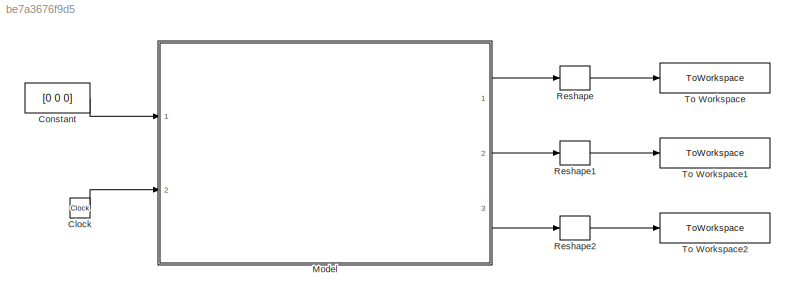
MODEL slx_be7a3676f9d5
KIND model
CONFIG AbsTol = auto
CONFIG EnableMultiTasking = off
CONFIG FixedStep = sen.imu_rate
CONFIG MaxStep = auto
CONFIG MinStep = auto
CONFIG RelTol = 1e-3
CONFIG SampleTimeConstraint = Unconstrained
CONFIG SolverName = FixedStepDiscrete
CONFIG StartTime = 0.0
CONFIG StopTime = 0
BLOCK [Clock] Clock
BLOCK [Constant] Constant
  Value = [0 0 0]
BLOCK [ModelReference] Model
  ModelNameDialog = sen_gyro_lib.slx
  ModelReferenceVersion = 1.140
  Ports = [2, 3]
BLOCK [Reshape] Reshape
  Ports = [1, 1]
BLOCK [Reshape] Reshape1
  Ports = [1, 1]
BLOCK [Reshape] Reshape2
  Ports = [1, 1]
BLOCK [ToWorkspace] To Workspace
  FixptAsFi = on
  MaxDataPoints = inf
  Ports = [1]
  SampleTime = sen.imu_rate
  SaveFormat = Timeseries
  VariableName = sen_gyro_rawAngle
BLOCK [ToWorkspace] To Workspace1
  FixptAsFi = on
  MaxDataPoints = inf
  Ports = [1]
  SampleTime = sen.imu_rate
  SaveFormat = Timeseries
  VariableName = sen_gyro_filtAngle
BLOCK [ToWorkspace] To Workspace2
  FixptAsFi = on
  MaxDataPoints = inf
  Ports = [1]
  SampleTime = sen.imu_rate
  SaveFormat = Timeseries
  VariableName = sen_gyro_timestamp
LINE Clock:1 -> Model:2
LINE Constant:1 -> Model:1
LINE Model:1 -> Reshape:1
LINE Model:2 -> Reshape1:1
LINE Model:3 -> Reshape2:1
LINE Reshape1:1 -> To Workspace1:1
LINE Reshape2:1 -> To Workspace2:1
LINE Reshape:1 -> To Workspace:1
